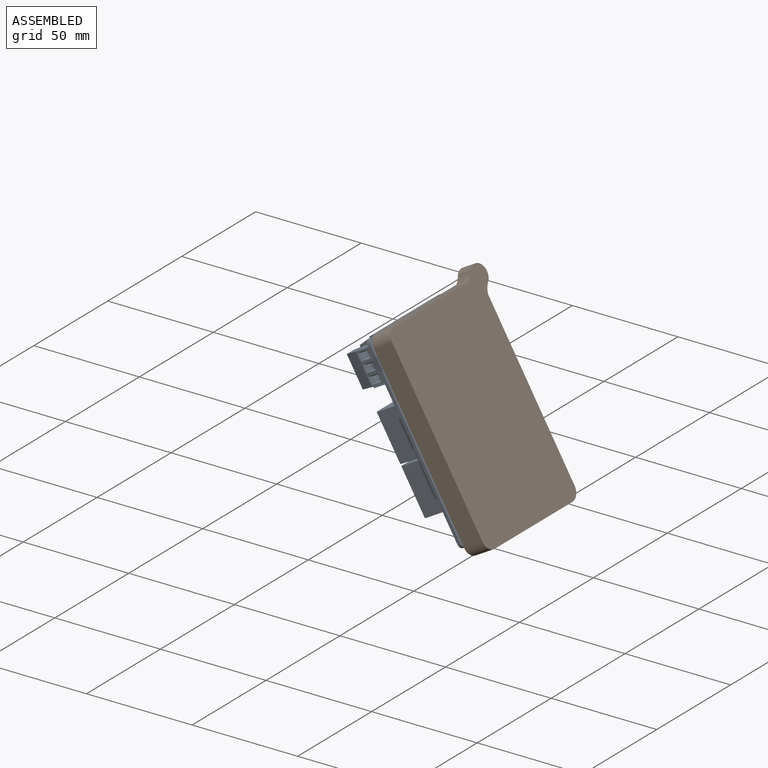
[diagram: assembled view]
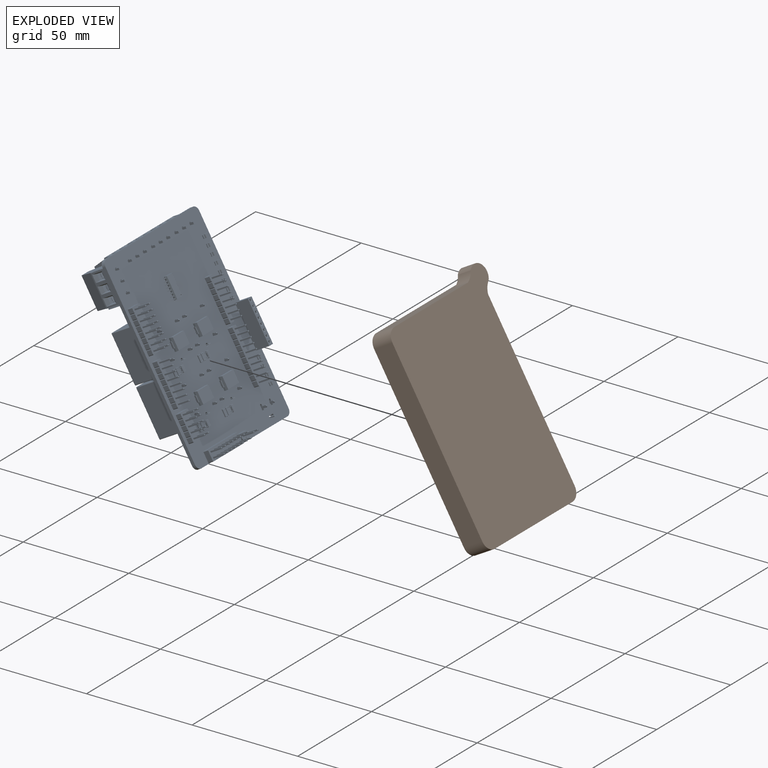
[diagram: exploded view]
GUIDED TOUR — FREECAD ASSEMBLY "case"

This assembly has 2 components, labeled P0..P1 below (a component is one placed body or linked part; the same part can appear more than once), held together by 0 modeled joints plus 1 derived contact edge. A joint is a constraint between two components; its type names the relative motion it leaves free:
  CONTACT — a derived adjacency edge — the two components touch in the source model (clearance under 2% of the assembly's diagonal); it is measured from the geometry, not a modeled constraint.
Axis/direction vectors are unit vectors and 'through' points are millimeter coordinates, both in the assembly's world frame.

MATES
  1. CONTACT "contact_0_1": P0 <-> P1, contact direction (1.000, 0.000, 0.000) through (-71.09, -64.52, 131.58) mm (derived from contact, not a modeled constraint)

ASSEMBLY ORDER
  1. P1 — the base component [order verified]
  2. P0 [order verified]
Order-tag legend:
  [order verified] — this step's position reverses a verified removal order: the component was checked to insert without passing through the ones already placed.

Of the 2 components, 1 carries a construction recipe — the FreeCAD feature program (sketches with constraints, then the solid features that consume them) that regenerates the part from scratch, quoted from this document or from the linked companion document it references; the rest are supplied as boundary geometry only. The tour below walks the components in assembly order: each is shown spotlighted twice — in the assembled view, then in the exploded view, where a leader line traces a displaced component back to its assembled socket (components that stay in place when exploded have no leader line; saturated green if recipe-attached, orange if geometry-only; every other component desaturated gray) — followed by its recipe or geometry summary and the mates that hold it.
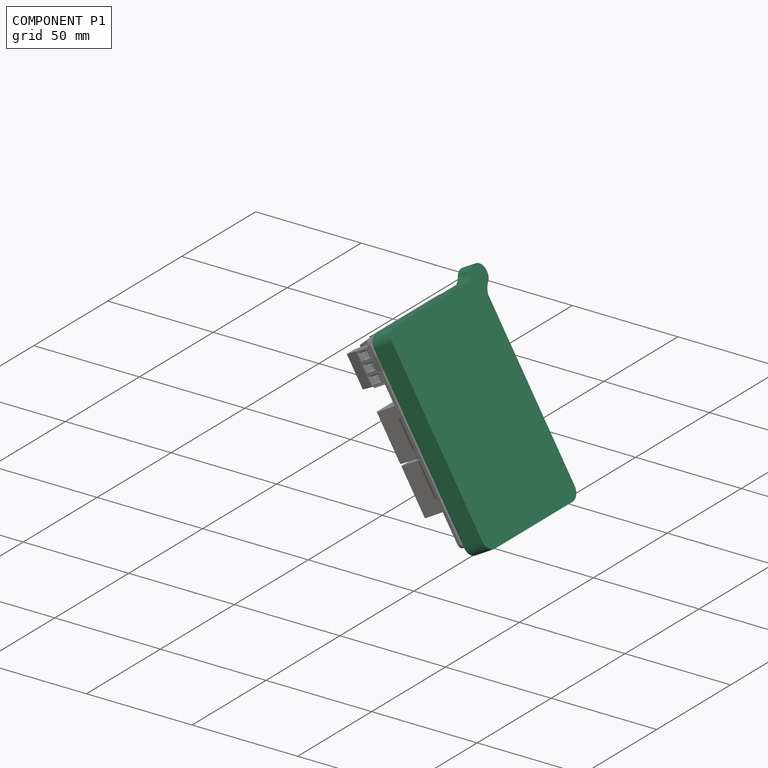
[diagram: component P1 — assembled]
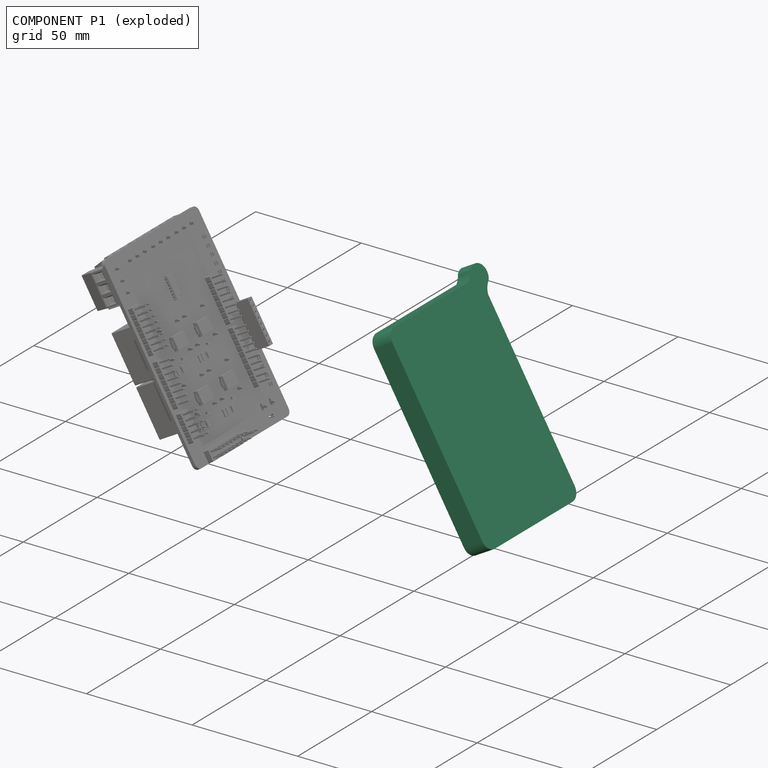
[diagram: component P1 — exploded]
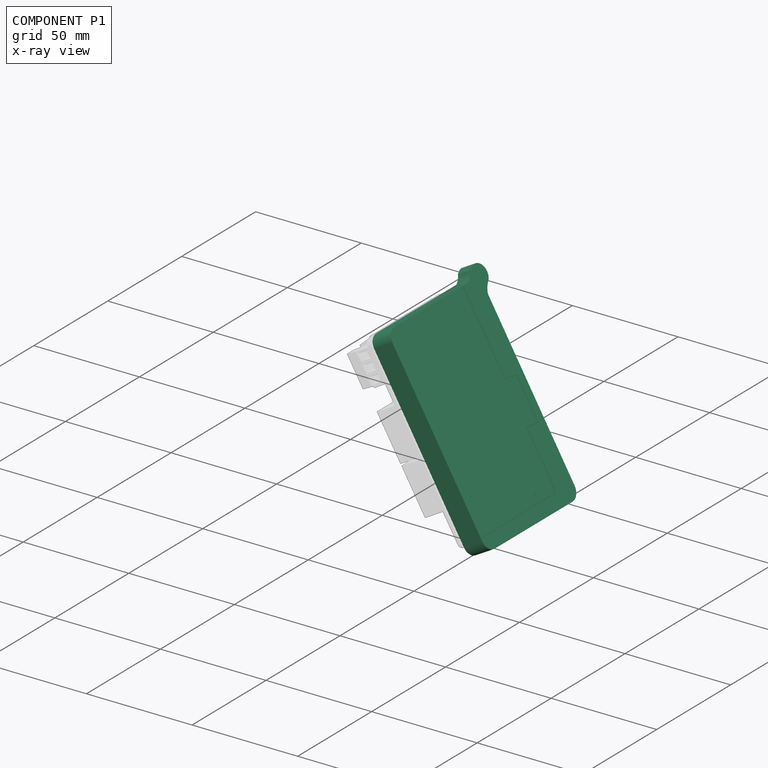
[diagram: component P1 — x-ray view]
COMPONENT P1 — recipe-attached ("Body", modeled in this document).
Held by: resting contact with P0 (derived edge).
Construction recipe (the document's own serialized feature program — sketch geometry with constraints, then the solid features built on it; lengths are millimeters unless a unit is written):

FEATURE [PartDesign::ShapeBinder] ShapeBinder
  Placement = pos=(0,61,0) rot=(0,1,0;4.18879rad)
  Support = -> [Pcb_28d6]
  TraceSupport = true
FEATURE [Sketcher::SketchObject] Sketch
  ExternalGeometry = -> [ShapeBinder]
  FullyConstrained = false
  MapMode = 5
  Placement = pos=(0,0,0) rot=(1,0,0;1.5708rad)
  Support = -> [XZ_Plane010]
  expr: Constraints[12] = <<params>>.wall_thickness
  sketch-geometry (15):
    g0: LineSegment StartX=-94.0745 StartY=166.142 StartZ=0 EndX=-96.0745 EndY=169.606 EndZ=0
    g1: LineSegment StartX=-99.1958 StartY=143.012 StartZ=0 EndX=-110.196 EndY=136.661 EndZ=0
    g2: LineSegment StartX=-110.196 StartY=136.661 StartZ=0 EndX=-110.196 EndY=81.6613 EndZ=0
    g3: LineSegment StartX=-110.196 StartY=81.6613 StartZ=0 EndX=-45.2996 EndY=81.6613 EndZ=0
    g4: LineSegment StartX=-51.8255 StartY=92.9645 StartZ=0 EndX=-40.0205 EndY=72.5176 EndZ=0
    g5: LineSegment StartX=-95.3894 StartY=168.419 StartZ=0 EndX=-96.3394 EndY=170.065 EndZ=0
    g6: LineSegment StartX=-96.0745 StartY=169.606 StartZ=0 EndX=-96.3394 EndY=170.065 EndZ=0
    g7: LineSegment StartX=-96.3394 StartY=170.065 StartZ=0 EndX=-110.196 EndY=162.065 EndZ=0
    g8: LineSegment StartX=-110.196 StartY=162.065 StartZ=0 EndX=-110.196 EndY=70.3447 EndZ=0
    g9: LineSegment StartX=-110.196 StartY=162.065 StartZ=0 EndX=-99.1958 EndY=143.012 EndZ=0
    g10: LineSegment StartX=-96.3394 StartY=170.065 StartZ=0 EndX=-90.2772 EndY=173.565 EndZ=0
    g11: LineSegment StartX=-90.2772 StartY=173.565 StartZ=0 EndX=-35.2772 EndY=78.3019 EndZ=0
    g12: LineSegment StartX=-45.2996 StartY=81.6613 StartZ=0 EndX=-37.2167 EndY=81.6613 EndZ=0
    g13: LineSegment StartX=-37.2167 StartY=81.6613 StartZ=0 EndX=-90.2772 EndY=173.565 EndZ=0
    g14: LineSegment StartX=-96.3394 StartY=170.065 StartZ=0 EndX=-90.2772 EndY=173.565 EndZ=0
  constraints (41):
    c: Coincident(g0,g-3)
    c: Parallel(g-3,g0)
    c: Distance(g0) = 4
    c: Coincident(g2,g1)
    c: Coincident(g3,g2)
    c: Horizontal(g3)
    c: Coincident(g4,g-3)
    c: Parallel(g-3,g4)
    c: Distance(g4) = 23.61
    c: PointOnObject(g3,g4)
    c: Coincident(g5,g-4)
    c: Parallel(g-3,g5)
    c: Distance(g5) = 1.9
    c: Coincident(g6,g5)
    c: Coincident(g7,g5)
    c: Perpendicular(g7,g5)
    c: Distance(g7) = 16
    c: Coincident(g8,g7)
    c: Vertical(g8)
    c: Distance(g8) = 91.72
    c: Coincident(g9,g7)
    c: Coincident(g9,g1)
    c: Perpendicular(g9,g7)
    c: Distance(g9) = 22
    c: Perpendicular(g1,g9)
    c: PointOnObject(g1,g8)
    c: PointOnObject(g2,g8)
    c: Distance(g2) = 55
    c: Coincident(g10,g7)
    c: Distance(g10) = 7
    c: Perpendicular(g0,g10)
    c: Coincident(g11,g10)
    c: Parallel(g11,g4)
    c: Distance(g11) = 110
    c: Coincident(g12,g3)
    c: PointOnObject(g12,g11)
    c: Horizontal(g12)
    c: Coincident(g13,g12)
    c: Coincident(g13,g10)
    c: Coincident(g14,g7)
    c: Coincident(g14,g13)
FEATURE [PartDesign::Pad] Pad
  Direction = (0,-1,-2e-16)
  Length = 2
  Length2 = 10
  Placement = pos=(0,0,0) rot=(1,0,0;1.5708rad)
  Profile = -> Sketch
  ReferenceAxis = -> Sketch [N_Axis]
  Type = 0
FEATURE [Sketcher::SketchObject] Sketch001
  ExternalGeometry = -> [Pad]
  FullyConstrained = true
  MapMode = 5
  Placement = pos=(0,-2,0) rot=(1,0,0;1.5708rad)
  Support = -> [Pad]
  sketch-geometry (33):
    g0: LineSegment StartX=-90.2772 StartY=173.565 StartZ=0 EndX=-110.196 EndY=162.065 EndZ=0
    g1: LineSegment StartX=-110.196 StartY=162.065 StartZ=0 EndX=-99.1958 EndY=143.012 EndZ=0
    g2: LineSegment StartX=-99.1958 StartY=143.012 StartZ=0 EndX=-110.196 EndY=136.661 EndZ=0
    g3: LineSegment StartX=-110.196 StartY=136.661 StartZ=0 EndX=-110.196 EndY=81.6613 EndZ=0
    g4: LineSegment StartX=-110.196 StartY=81.6613 StartZ=0 EndX=-37.2167 EndY=81.6613 EndZ=0
    g5: LineSegment StartX=-37.2167 StartY=81.6613 StartZ=0 EndX=-42.7167 EndY=91.1875 EndZ=0
    g6: LineSegment StartX=-90.2772 StartY=173.565 StartZ=0 EndX=-89.7772 EndY=172.699 EndZ=0
    g7: LineSegment StartX=-110.196 StartY=162.065 StartZ=0 EndX=-109.696 EndY=161.199 EndZ=0
    g8: LineSegment StartX=-109.696 StartY=161.199 StartZ=0 EndX=-108.83 EndY=161.699 EndZ=0
    g9: LineSegment StartX=-89.7772 StartY=172.699 StartZ=0 EndX=-108.83 EndY=161.699 EndZ=0
    g10: LineSegment StartX=-99.1958 StartY=143.012 StartZ=0 EndX=-98.3297 EndY=143.512 EndZ=0
    g11: LineSegment StartX=-98.3297 StartY=143.512 StartZ=0 EndX=-97.8297 EndY=142.646 EndZ=0
    g12: LineSegment StartX=-97.8297 StartY=142.646 StartZ=0 EndX=-108.83 EndY=161.699 EndZ=0
    g13: LineSegment StartX=-110.196 StartY=136.661 StartZ=0 EndX=-109.33 EndY=137.161 EndZ=0
    g14: LineSegment StartX=-109.33 StartY=137.161 StartZ=0 EndX=-108.83 EndY=136.295 EndZ=0
    g15: LineSegment StartX=-110.196 StartY=136.661 StartZ=0 EndX=-110.196 EndY=135.661 EndZ=0
    g16: LineSegment StartX=-110.196 StartY=135.661 StartZ=0 EndX=-109.196 EndY=135.661 EndZ=0
    g17: LineSegment StartX=-109.196 StartY=135.661 StartZ=0 EndX=-108.83 EndY=136.295 EndZ=0
    g18: LineSegment StartX=-108.83 StartY=136.295 StartZ=0 EndX=-97.8297 EndY=142.646 EndZ=0
    g19: LineSegment StartX=-110.196 StartY=81.6613 StartZ=0 EndX=-110.196 EndY=82.6613 EndZ=0
    g20: LineSegment StartX=-110.196 StartY=82.6613 StartZ=0 EndX=-109.196 EndY=82.6613 EndZ=0
    g21: LineSegment StartX=-37.2167 StartY=81.6613 StartZ=0 EndX=-38.2167 EndY=81.6613 EndZ=0
    g22: LineSegment StartX=-38.2167 StartY=81.6613 StartZ=0 EndX=-38.2167 EndY=82.6613 EndZ=0
    g23: LineSegment StartX=-37.2167 StartY=81.6613 StartZ=0 EndX=-37.7167 EndY=82.5273 EndZ=0
    g24: LineSegment StartX=-37.7167 StartY=82.5273 StartZ=0 EndX=-38.5827 EndY=82.0273 EndZ=0
    g25: LineSegment StartX=-38.2167 StartY=82.6613 StartZ=0 EndX=-37.8997 EndY=82.8443 EndZ=0
    g26: LineSegment StartX=-38.5827 StartY=82.0273 StartZ=0 EndX=-39.4027 EndY=83.4476 EndZ=0
    g27: LineSegment StartX=-38.2167 StartY=82.6613 StartZ=0 EndX=-38.9488 EndY=82.6613 EndZ=0
    g28: LineSegment StartX=-38.9488 StartY=82.6613 StartZ=0 EndX=-109.196 EndY=82.6613 EndZ=0
    g29: LineSegment StartX=-109.196 StartY=82.6613 StartZ=0 EndX=-109.196 EndY=135.661 EndZ=0
    g30: LineSegment StartX=-42.7167 StartY=91.1875 StartZ=0 EndX=-43.5827 EndY=90.6875 EndZ=0
    g31: LineSegment StartX=-43.5827 StartY=90.6875 StartZ=0 EndX=-42.7167 EndY=91.1875 EndZ=0
    g32: LineSegment StartX=-43.5827 StartY=90.6875 StartZ=0 EndX=-38.9488 EndY=82.6613 EndZ=0
  constraints (86):
    c: Coincident(g0,g-5)
    c: Coincident(g0,g-6)
    c: Coincident(g1,g0)
    c: Coincident(g1,g-10)
    c: Coincident(g2,g1)
    c: Coincident(g2,g-10)
    c: Coincident(g3,g2)
    c: Coincident(g3,g-9)
    c: Coincident(g4,g3)
    c: Coincident(g4,g-7)
    c: Coincident(g5,g4)
    c: PointOnObject(g5,g-5)
    c: Distance(g5) = 11
    c: Coincident(g6,g0)
    c: PointOnObject(g6,g-5)
    c: Distance(g6) = 1
    c: Coincident(g7,g0)
    c: Distance(g7) = 1
    c: Parallel(g1,g7)
    c: Coincident(g8,g7)
    c: Distance(g8) = 1
    c: Perpendicular(g8,g1)
    c: Coincident(g9,g6)
    c: Coincident(g9,g8)
    c: Coincident(g10,g1)
    c: Distance(g10) = 1
    c: Parallel(g10,g2)
    c: Coincident(g11,g10)
    c: Distance(g11) = 1
    c: Perpendicular(g10,g11)
    c: Coincident(g12,g11)
    c: Coincident(g12,g9)
    c: Coincident(g13,g2)
    c: Coincident(g14,g13)
    c: Distance(g14) = 1
    c: Distance(g13) = 1
    c: Parallel(g13,g2)
    c: Perpendicular(g2,g14)
    c: Coincident(g15,g2)
    c: Coincident(g16,g15)
    c: Distance(g16) = 1
    c: Distance(g15) = 1
    c: Perpendicular(g3,g16)
    c: Parallel(g15,g3)
    c: Coincident(g17,g16)
    c: Coincident(g17,g14)
    c: Coincident(g18,g17)
    c: Coincident(g18,g12)
    c: Coincident(g19,g3)
    c: Coincident(g20,g19)
    c: Distance(g19) = 1
    c: Distance(g20) = 1
    c: Perpendicular(g3,g20)
    c: Parallel(g19,g3)
    c: Coincident(g21,g4)
    c: Coincident(g22,g21)
    c: Distance(g22) = 1
    c: Distance(g21) = 1
    c: Parallel(g21,g4)
    c: Perpendicular(g4,g22)
    c: Coincident(g23,g4)
    c: Coincident(g24,g23)
    c: Distance(g24) = 1
    c: Distance(g23) = 1
    c: Parallel(g23,g5)
    c: Perpendicular(g5,g24)
    c: Coincident(g25,g22)
    c: PointOnObject(g25,g5)
    c: Parallel(g25,g24)
    c: Coincident(g26,g24)
    c: Coincident(g27,g22)
    c: Perpendicular(g26,g24)
    c: Perpendicular(g27,g22)
    c: PointOnObject(g27,g26)
    c: Distance(g26) = 1.64
    c: Coincident(g28,g27)
    c: Coincident(g28,g20)
    c: Coincident(g29,g28)
    c: Coincident(g29,g17)
    c: Coincident(g30,g5)
    c: Distance(g30) = 1
    c: Perpendicular(g30,g5)
    c: Coincident(g31,g30)
    c: Coincident(g31,g5)
    c: Coincident(g32,g31)
    c: Coincident(g32,g28)
FEATURE [PartDesign::Pad] Pad001
  BaseFeature = -> Pad
  Direction = (0,-1,2e-16)
  Length = 72
  Length2 = 10
  Placement = pos=(0,0,0) rot=(1,0,0;1.5708rad)
  Profile = -> Sketch001
  ReferenceAxis = -> Sketch001 [N_Axis]
  Type = 0
FEATURE [Sketcher::SketchObject] Sketch002
  ExternalGeometry = -> [Pad001]
  FullyConstrained = true
  MapMode = 5
  Placement = pos=(0,-74,3.27e-14) rot=(1,0,0;1.5708rad)
  Support = -> [Pad001]
  sketch-geometry (6):
    g0: LineSegment StartX=-110.196 StartY=81.6613 StartZ=0 EndX=-37.2167 EndY=81.6613 EndZ=0
    g1: LineSegment StartX=-110.196 StartY=81.6613 StartZ=0 EndX=-110.196 EndY=136.661 EndZ=0
    g2: LineSegment StartX=-110.196 StartY=136.661 StartZ=0 EndX=-99.1958 EndY=143.012 EndZ=0
    g3: LineSegment StartX=-99.1958 StartY=143.012 StartZ=0 EndX=-110.196 EndY=162.065 EndZ=0
    g4: LineSegment StartX=-110.196 StartY=162.065 StartZ=0 EndX=-90.2772 EndY=173.565 EndZ=0
    g5: LineSegment StartX=-90.2772 StartY=173.565 StartZ=0 EndX=-37.2167 EndY=81.6613 EndZ=0
  constraints (12):
    c: Coincident(g0,g-6)
    c: Coincident(g0,g-7)
    c: Coincident(g1,g0)
    c: Coincident(g1,g-6)
    c: Coincident(g2,g1)
    c: Coincident(g2,g-5)
    c: Coincident(g3,g2)
    c: Coincident(g3,g-5)
    c: Coincident(g4,g3)
    c: Coincident(g4,g-4)
    c: Coincident(g5,g4)
    c: Coincident(g5,g0)
FEATURE [PartDesign::Pad] Pad002
  BaseFeature = -> Pad001
  Direction = (0,-1,2e-16)
  Length = 2
  Length2 = 10
  Placement = pos=(0,0,0) rot=(1,0,0;1.5708rad)
  Profile = -> Sketch002
  ReferenceAxis = -> Sketch002 [N_Axis]
  Reversed = true
  Type = 0
FEATURE [PartDesign::Fillet] Fillet
  Base = -> Pad002 [Edge48]
  BaseFeature = -> Pad002
  Placement = pos=(0,0,0) rot=(1,0,0;1.5708rad)
  Radius = 10
  SupportTransform = false
  UseAllEdges = false
FEATURE [PartDesign::Fillet] Fillet001
  Base = -> Fillet [Edge30]
  BaseFeature = -> Fillet
  Placement = pos=(0,0,0) rot=(1,0,0;1.5708rad)
  Radius = 5
  SupportTransform = false
  UseAllEdges = false
FEATURE [PartDesign::Fillet] Fillet002
  Base = -> Fillet001 [Edge40]
  BaseFeature = -> Fillet001
  Placement = pos=(0,0,0) rot=(1,0,0;1.5708rad)
  Radius = 3
  SupportTransform = false
  UseAllEdges = false
FEATURE [PartDesign::ShapeBinder] ShapeBinder001
  Placement = pos=(0,61,0) rot=(0,-1,0;2.0944rad)
  Support = -> [Pcb_28d6]
  TraceSupport = true
FEATURE [PartDesign::ShapeBinder] ShapeBinder002
  Placement = pos=(0,61,0) rot=(0,-1,0;2.0944rad)
  Support = -> [Pcb_28d6]
  TraceSupport = true
FEATURE [Sketcher::SketchObject] Sketch003
  ExternalGeometry = -> [ShapeBinder002]
  FullyConstrained = true
  MapMode = 5
  Placement = pos=(0,-2,0) rot=(1,0,0;1.5708rad)
  Support = -> [Fillet002]
  sketch-geometry (4):
    g0: LineSegment StartX=-75.9275 StartY=131.51 StartZ=0 EndX=-66.5375 EndY=115.246 EndZ=0
    g1: LineSegment StartX=-75.9275 StartY=131.51 StartZ=0 EndX=-78.5256 EndY=130.01 EndZ=0
    g2: LineSegment StartX=-78.5256 StartY=130.01 StartZ=0 EndX=-69.1356 EndY=113.746 EndZ=0
    g3: LineSegment StartX=-69.1356 StartY=113.746 StartZ=0 EndX=-66.5375 EndY=115.246 EndZ=0
  constraints (10):
    c: Coincident(g0,g-3)
    c: Coincident(g0,g-4)
    c: Coincident(g1,g0)
    c: Coincident(g2,g1)
    c: Coincident(g3,g2)
    c: Coincident(g3,g0)
    c: Equal(g1,g3)
    c: Perpendicular(g0,g1)
    c: Perpendicular(g2,g1)
    c: Distance(g3) = 3
FEATURE [PartDesign::Pad] Pad003
  BaseFeature = -> Fillet002
  Direction = (0,-1,2e-16)
  Length = 5
  Length2 = 10
  Placement = pos=(0,0,0) rot=(1,0,0;1.5708rad)
  Profile = -> Sketch003
  ReferenceAxis = -> Sketch003 [N_Axis]
  Type = 0
FEATURE [PartDesign::ShapeBinder] ShapeBinder003
  Placement = pos=(0,61,0) rot=(0,-1,0;2.0944rad)
  Support = -> [Pcb_28d6]
  TraceSupport = true
FEATURE [Sketcher::SketchObject] Sketch004
  ExternalGeometry = -> [ShapeBinder003]
  FullyConstrained = true
  MapMode = 5
  Placement = pos=(7e-16,-72,3.83e-14) rot=(-1,0,0;1.5708rad)
  Support = -> [Pad003]
  sketch-geometry (4):
    g0: LineSegment StartX=-57.6575 StartY=-99.8657 StartZ=0 EndX=-63.2375 EndY=-109.531 EndZ=0
    g1: LineSegment StartX=-63.2375 StartY=-109.531 StartZ=0 EndX=-65.8356 EndY=-108.031 EndZ=0
    g2: LineSegment StartX=-57.6575 StartY=-99.8657 StartZ=0 EndX=-60.2556 EndY=-98.3657 EndZ=0
    g3: LineSegment StartX=-60.2556 StartY=-98.3657 StartZ=0 EndX=-65.8356 EndY=-108.031 EndZ=0
  constraints (10):
    c: Coincident(g0,g-4)
    c: Coincident(g0,g-3)
    c: Coincident(g1,g0)
    c: Coincident(g2,g0)
    c: Coincident(g3,g2)
    c: Coincident(g3,g1)
    c: Equal(g0,g3)
    c: Perpendicular(g2,g0)
    c: Distance(g2) = 3
    c: Equal(g2,g1)
FEATURE [PartDesign::Pad] Pad004
  BaseFeature = -> Pad003
  Direction = (0,1,-4e-16)
  Length = 5
  Length2 = 10
  Placement = pos=(0,0,0) rot=(1,0,0;1.5708rad)
  Profile = -> Sketch004
  ReferenceAxis = -> Sketch004 [N_Axis]
  Type = 0
FEATURE [PartDesign::ShapeBinder] ShapeBinder004
  Placement = pos=(-61.3231,-6.025,93.8147) rot=(-0.774597,0.447214,0.447214;1.82348rad)
  Support = -> [Part__Feature]
  TraceSupport = true
FEATURE [PartDesign::ShapeBinder] ShapeBinder005
  Placement = pos=(0,61,0) rot=(0,-1,0;2.0944rad)
  Support = -> [Pcb_28d6]
  TraceSupport = true
FEATURE [Sketcher::SketchObject] Sketch005
  ExternalGeometry = -> [ShapeBinder004]
  FullyConstrained = true
  MapMode = 5
  Placement = pos=(0,-2e-16,0) rot=(-1,0,0;1.5708rad)
  Support = -> [Pad004]
  sketch-geometry (4):
    g0: LineSegment StartX=-58.3384 StartY=-100.063 StartZ=0 EndX=-54.4193 EndY=-93.2752 EndZ=0
    g1: LineSegment StartX=-54.4193 StartY=-93.2752 StartZ=0 EndX=-62.6623 EndY=-88.5161 EndZ=0
    g2: LineSegment StartX=-62.6623 StartY=-88.5161 StartZ=0 EndX=-66.5815 EndY=-95.3042 EndZ=0
    g3: LineSegment StartX=-66.5815 StartY=-95.3042 StartZ=0 EndX=-58.3384 EndY=-100.063 EndZ=0
  constraints (8):
    c: Coincident(g0,g-5)
    c: Coincident(g0,g-6)
    c: Coincident(g1,g0)
    c: Coincident(g1,g-6)
    c: Coincident(g2,g1)
    c: Coincident(g2,g-5)
    c: Coincident(g3,g2)
    c: Coincident(g3,g0)
FEATURE [PartDesign::Pocket] Pocket
  BaseFeature = -> Pad004
  Direction = (0,-1,4e-16)
  Length = 5
  Length2 = 5
  Placement = pos=(0,0,0) rot=(1,0,0;1.5708rad)
  Profile = -> Sketch005
  ReferenceAxis = -> Sketch005 [N_Axis]
  Type = 0
FEATURE [Sketcher::SketchObject] Sketch006
  ExternalGeometry = -> [ShapeBinder005]
  FullyConstrained = true
  MapMode = 5
  Placement = pos=(-12.4708,-2.5e-15,-7.2) rot=(0.866025,0,-0.5;3.14159rad)
  Support = -> [Pocket]
  sketch-geometry (8):
    g0: LineSegment StartX=-188.3 StartY=10.515 StartZ=0 EndX=-188.3 EndY=7.515 EndZ=0
    g1: LineSegment StartX=-188.28 StartY=52.235 StartZ=0 EndX=-188.28 EndY=55.235 EndZ=0
    g2: LineSegment StartX=-188.28 StartY=55.235 StartZ=0 EndX=-185.28 EndY=55.235 EndZ=0
    g3: LineSegment StartX=-188.3 StartY=7.515 StartZ=0 EndX=-191.3 EndY=7.515 EndZ=0
    g4: LineSegment StartX=-191.3 StartY=7.515 StartZ=0 EndX=-185.28 EndY=7.515 EndZ=0
    g5: LineSegment StartX=-185.28 StartY=7.515 StartZ=0 EndX=-185.28 EndY=55.235 EndZ=0
    g6: LineSegment StartX=-185.28 StartY=55.235 StartZ=0 EndX=-191.3 EndY=55.235 EndZ=0
    g7: LineSegment StartX=-191.3 StartY=55.235 StartZ=0 EndX=-191.3 EndY=7.515 EndZ=0
  constraints (22):
    c: Coincident(g0,g-3)
    c: Vertical(g0)
    c: Coincident(g1,g-4)
    c: Vertical(g1)
    c: Coincident(g2,g1)
    c: Horizontal(g2)
    c: Coincident(g3,g0)
    c: Horizontal(g3)
    c: Distance(g0) = 3
    c: Distance(g3) = 3
    c: Distance(g2) = 3
    c: Distance(g1) = 3
    c: Coincident(g4,g5)
    c: Coincident(g5,g6)
    c: Coincident(g6,g7)
    c: Coincident(g7,g4)
    c: Horizontal(g4)
    c: Horizontal(g6)
    c: Vertical(g5)
    c: Vertical(g7)
    c: Coincident(g4,g3)
    c: Coincident(g5,g2)
FEATURE [PartDesign::Pocket] Pocket001
  BaseFeature = -> Pocket
  Direction = (0.866025,4e-16,0.5)
  Length = 5
  Length2 = 5
  Placement = pos=(0,0,0) rot=(1,0,0;1.5708rad)
  Profile = -> Sketch006
  ReferenceAxis = -> Sketch006 [N_Axis]
  Type = 0
FEATURE [Sketcher::SketchObject] Sketch007
  ExternalGeometry = -> [ShapeBinder005]
  FullyConstrained = true
  MapMode = 5
  Placement = pos=(-97.725,5.71e-14,169.265) rot=(-0.258819,0,0.965926;3.14159rad)
  Support = -> [Pocket001]
  sketch-geometry (7):
    g0: LineSegment StartX=-4.26e-14 StartY=9.865 StartZ=0 EndX=0 EndY=6.865 EndZ=0
    g1: LineSegment StartX=-1.42e-14 StartY=52.885 StartZ=0 EndX=0 EndY=55.885 EndZ=0
    g2: LineSegment StartX=0 StartY=6.865 StartZ=0 EndX=10 EndY=6.865 EndZ=0
    g3: LineSegment StartX=10 StartY=6.865 StartZ=0 EndX=0 EndY=6.865 EndZ=0
    g4: LineSegment StartX=0 StartY=6.865 StartZ=0 EndX=0 EndY=55.885 EndZ=0
    g5: LineSegment StartX=0 StartY=55.885 StartZ=0 EndX=10 EndY=55.885 EndZ=0
    g6: LineSegment StartX=10 StartY=55.885 StartZ=0 EndX=10 EndY=6.865 EndZ=0
  constraints (19):
    c: Coincident(g0,g-4)
    c: PointOnObject(g0,g-2)
    c: Coincident(g1,g-3)
    c: PointOnObject(g1,g-2)
    c: Coincident(g2,g0)
    c: Horizontal(g2)
    c: Distance(g1) = 3
    c: Distance(g0) = 3
    c: Distance(g2) = 10
    c: Coincident(g3,g4)
    c: Coincident(g4,g5)
    c: Coincident(g5,g6)
    c: Coincident(g6,g3)
    c: Horizontal(g3)
    c: Horizontal(g5)
    c: Vertical(g4)
    c: Vertical(g6)
    c: Coincident(g3,g2)
    c: Coincident(g4,g1)
FEATURE [PartDesign::Pocket] Pocket002
  BaseFeature = -> Pocket001
  Direction = (0.5,-8e-16,-0.866025)
  Length = 5
  Length2 = 5
  Placement = pos=(0,0,0) rot=(1,0,0;1.5708rad)
  Profile = -> Sketch007
  ReferenceAxis = -> Sketch007 [N_Axis]
  Type = 0
FEATURE [Sketcher::SketchObject] Sketch008
  ExternalGeometry = -> [Pocket002]
  FullyConstrained = true
  MapMode = 5
  Placement = pos=(0,-2e-16,0) rot=(-1,0,0;1.5708rad)
  Support = -> [Pocket002]
  sketch-geometry (9):
    g0: LineSegment StartX=-54.4193 StartY=-93.2752 StartZ=0 EndX=-46.5464 EndY=-97.8207 EndZ=0
    g1: LineSegment StartX=-58.3384 StartY=-100.063 StartZ=0 EndX=-50.4655 EndY=-104.609 EndZ=0
    g2: LineSegment StartX=-46.5464 StartY=-97.8207 StartZ=0 EndX=-44.0464 EndY=-93.4905 EndZ=0
    g3: LineSegment StartX=-50.4655 StartY=-104.609 StartZ=0 EndX=-52.9655 EndY=-108.939 EndZ=0
    g4: LineSegment StartX=-52.9655 StartY=-108.939 StartZ=0 EndX=-55.5636 EndY=-107.439 EndZ=0
    g5: LineSegment StartX=-52.9655 StartY=-108.939 StartZ=0 EndX=-55.5636 EndY=-107.439 EndZ=0
    g6: LineSegment StartX=-52.9655 StartY=-108.939 StartZ=0 EndX=-44.0464 EndY=-93.4905 EndZ=0
    g7: LineSegment StartX=-44.0464 StartY=-93.4905 StartZ=0 EndX=-46.6444 EndY=-91.9905 EndZ=0
    g8: LineSegment StartX=-46.6444 StartY=-91.9905 StartZ=0 EndX=-55.5636 EndY=-107.439 EndZ=0
  constraints (24):
    c: Coincident(g0,g-3)
    c: PointOnObject(g0,g-4)
    c: Coincident(g1,g-3)
    c: PointOnObject(g1,g-4)
    c: Perpendicular(g-3,g0)
    c: Perpendicular(g-3,g1)
    c: Coincident(g2,g0)
    c: Coincident(g3,g1)
    c: Coincident(g4,g3)
    c: Distance(g3) = 5
    c: Distance(g2) = 5
    c: Parallel(g2,g-4)
    c: Parallel(g3,g-4)
    c: Perpendicular(g3,g4)
    c: Distance(g4) = 3
    c: Coincident(g5,g3)
    c: Coincident(g5,g4)
    c: Coincident(g6,g5)
    c: Coincident(g6,g2)
    c: Coincident(g7,g6)
    c: Coincident(g8,g7)
    c: Coincident(g8,g5)
    c: Equal(g5,g7)
    c: Perpendicular(g7,g6)
FEATURE [PartDesign::Pocket] Pocket003
  BaseFeature = -> Pocket002
  Direction = (0,-1,7e-16)
  Length = 5
  Length2 = 5
  Placement = pos=(0,0,0) rot=(1,0,0;1.5708rad)
  Profile = -> Sketch008
  ReferenceAxis = -> Sketch008 [N_Axis]
  Type = 0
FEATURE [PartDesign::ShapeBinder] ShapeBinder006
  Placement = pos=(1.38564,61,0.8) rot=(0,-1,0;2.0944rad)
  Support = -> [Pcb_28d6]
  TraceSupport = true
FEATURE [Sketcher::SketchObject] Sketch009
  ExternalGeometry = -> [ShapeBinder006,Pocket003]
  FullyConstrained = true
  MapMode = 5
  Placement = pos=(0,-2,0) rot=(1,0,0;1.5708rad)
  Support = -> [Pocket003]
  sketch-geometry (6):
    g0: LineSegment StartX=-66.5375 StartY=115.246 StartZ=0 EndX=-65.1519 EndY=116.046 EndZ=0
    g1: LineSegment StartX=-75.9275 StartY=131.51 StartZ=0 EndX=-74.5419 EndY=132.31 EndZ=0
    g2: LineSegment StartX=-65.1519 StartY=116.046 StartZ=0 EndX=-74.5419 EndY=132.31 EndZ=0
    g3: LineSegment StartX=-74.5419 StartY=132.31 StartZ=0 EndX=-68.4797 EndY=135.81 EndZ=0
    g4: LineSegment StartX=-65.1519 StartY=116.046 StartZ=0 EndX=-59.0897 EndY=119.546 EndZ=0
    g5: LineSegment StartX=-68.4797 StartY=135.81 StartZ=0 EndX=-59.0897 EndY=119.546 EndZ=0
  constraints (16):
    c: Coincident(g0,g-6)
    c: PointOnObject(g0,g-4)
    c: Coincident(g1,g-5)
    c: PointOnObject(g1,g-4)
    c: Perpendicular(g-4,g1)
    c: Perpendicular(g-4,g0)
    c: Coincident(g2,g0)
    c: Coincident(g2,g1)
    c: Coincident(g3,g2)
    c: PointOnObject(g3,g-7)
    c: Coincident(g4,g2)
    c: PointOnObject(g4,g-7)
    c: Perpendicular(g-7,g4)
    c: Perpendicular(g-7,g3)
    c: Coincident(g5,g3)
    c: Coincident(g5,g4)
FEATURE [PartDesign::Pad] Pad005
  BaseFeature = -> Pocket003
  Direction = (0,-1,7e-16)
  Length = 9
  Length2 = 10
  Placement = pos=(0,0,0) rot=(1,0,0;1.5708rad)
  Profile = -> Sketch009
  ReferenceAxis = -> Sketch009 [N_Axis]
  Type = 0
FEATURE [Sketcher::SketchObject] Sketch010
  ExternalGeometry = -> [Pad005]
  FullyConstrained = true
  MapMode = 5
  Placement = pos=(1.38564,7e-16,0.8) rot=(0.866025,0,-0.5;3.14159rad)
  Support = -> [Pad005]
  sketch-geometry (4):
    g0: LineSegment StartX=-151.855 StartY=11 StartZ=0 EndX=-133.075 EndY=11 EndZ=0
    g1: LineSegment StartX=-133.075 StartY=11 StartZ=0 EndX=-133.075 EndY=2 EndZ=0
    g2: LineSegment StartX=-133.075 StartY=2 StartZ=0 EndX=-151.855 EndY=2 EndZ=0
    g3: LineSegment StartX=-151.855 StartY=2 StartZ=0 EndX=-151.855 EndY=11 EndZ=0
  constraints (10):
    c: Coincident(g0,g1)
    c: Coincident(g1,g2)
    c: Coincident(g2,g3)
    c: Coincident(g3,g0)
    c: Horizontal(g0)
    c: Horizontal(g2)
    c: Vertical(g1)
    c: Vertical(g3)
    c: Coincident(g0,g-4)
    c: Coincident(g1,g-5)
FEATURE [PartDesign::Pocket] Pocket004
  BaseFeature = -> Pad005
  Direction = (0.866025,4e-16,0.5)
  Length = 1
  Length2 = 5
  Placement = pos=(0,0,0) rot=(1,0,0;1.5708rad)
  Profile = -> Sketch010
  ReferenceAxis = -> Sketch010 [N_Axis]
  Type = 0
FEATURE [PartDesign::Chamfer] Chamfer
  Angle = 45
  Base = -> Pocket004 [Edge142]
  BaseFeature = -> Pocket004
  ChamferType = 0
  FlipDirection = false
  Placement = pos=(0,0,0) rot=(1,0,0;1.5708rad)
  Size = 2
  Size2 = 1
  SupportTransform = false
  UseAllEdges = false
FEATURE [PartDesign::Chamfer] Chamfer001
  Angle = 45
  Base = -> Chamfer [Edge140]
  BaseFeature = -> Chamfer
  ChamferType = 0
  FlipDirection = false
  Placement = pos=(0,0,0) rot=(1,0,0;1.5708rad)
  Size = 2.5
  Size2 = 1
  SupportTransform = false
  UseAllEdges = false
FEATURE [PartDesign::Body] Body  label="back"
  Group = -> [ShapeBinder,Sketch,Pad,Sketch001,Pad001,Sketch002,Pad002,Fillet,Fillet001,Fillet002,ShapeBinder001,ShapeBinder002,Sketch003,Pad003,ShapeBinder003,Sketch004,Pad004,ShapeBinder004,ShapeBinder005,Sketch005,Pocket,Sketch006,Pocket001,Sketch007,Pocket002,Sketch008,Pocket003,ShapeBinder006,Sketch009,Pad005,Sketch010,Pocket004,Chamfer,Chamfer001]
  Origin = -> Origin010
  Tip = -> Chamfer001
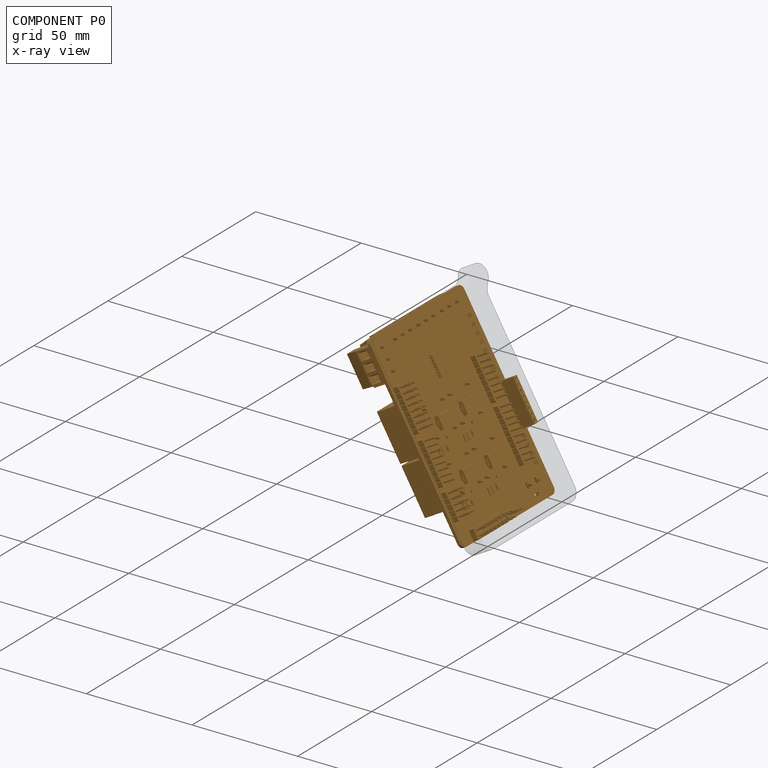
[diagram: component P0 — x-ray view]
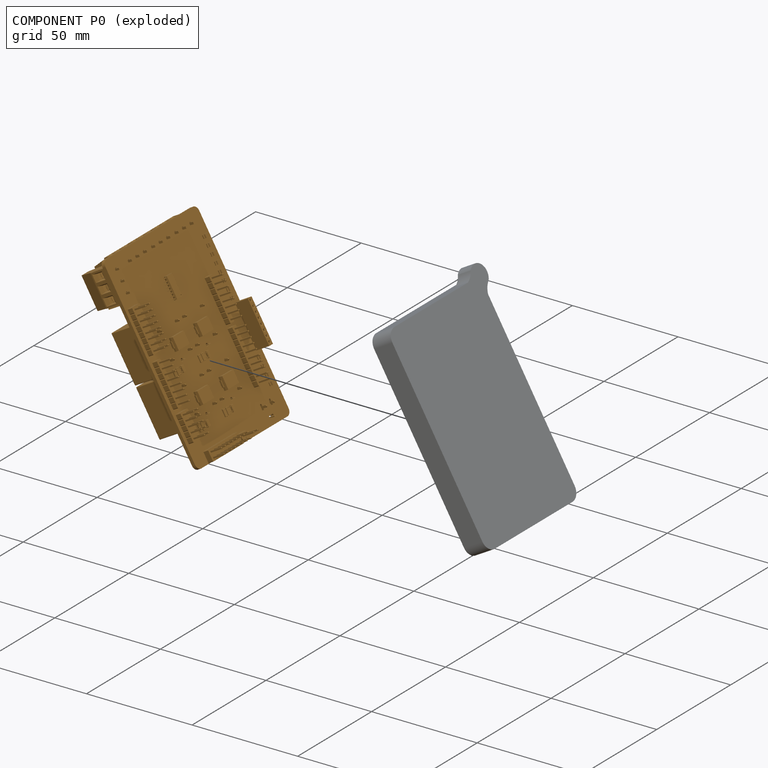
[diagram: component P0 — exploded]
COMPONENT P0 — geometry summary ("shield"; no construction recipe available for this part):
  bounding box: 80.5 x 63.7 x 63.6 mm
  tessellated surface: 115,720 triangles
  volume: 45576 mm^3 (14% of its bounding box)
Held by: resting contact with P1 (derived edge).
PROVENANCE & LICENSES
Assembly and component geometry: a FreeCAD (.FCStd) document from a public repository crawl; components, placements and joints were extracted with FreeCAD and each solid tessellated.
Construction recipes: the document's own serialized feature recipes (and, for linked parts, the recipes of companion documents from the same project).
License: mit.
Joints: native FreeCAD joints and A2plus constraints are mapped to standard mate types; edges marked 'derived from contact' connect touching components and are measured from the geometry, not modeled.
Verification: 1 of this assembly's 2 components carries a construction recipe (1 from this document itself); the rest are geometry-only. Every component's tessellation passed the extraction mesh gates (mesh-volume checksum against the B-rep where available, bounding-box inflation <= 2%).
Renders: orthographic iso camera (az 35 / el 25); the floor grid conveys scale (grid pitch printed in each image; no ruler). In the exploded view each component is displaced by its stored offset vector: the offsets alone carry the explosion direction (mate normal/axis signs are not orientation cues and do not encode it), and separation distances are assigned per mate-chain, not proportionally to assembly-order depth.
